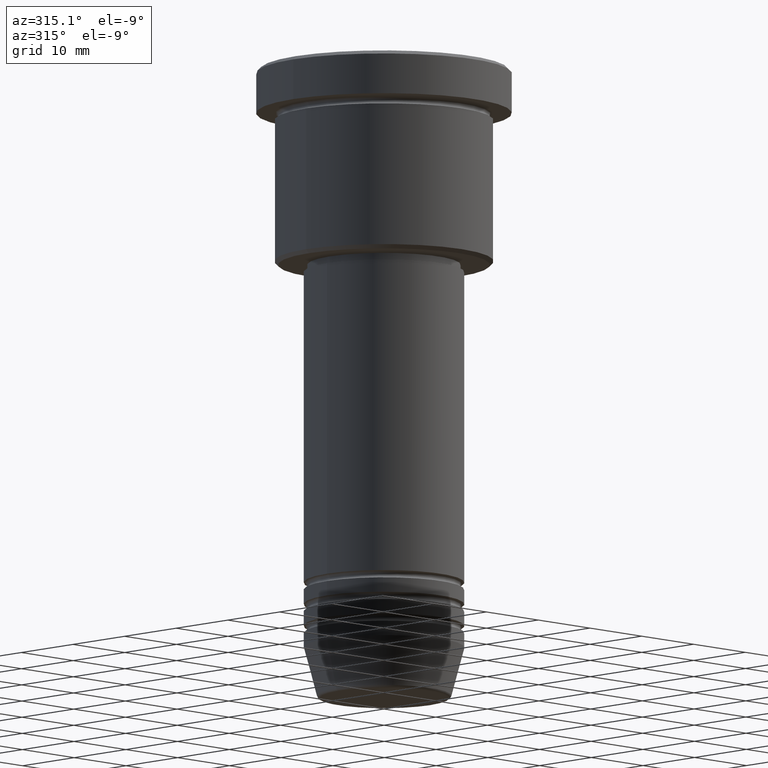
[diagram: clean part render]
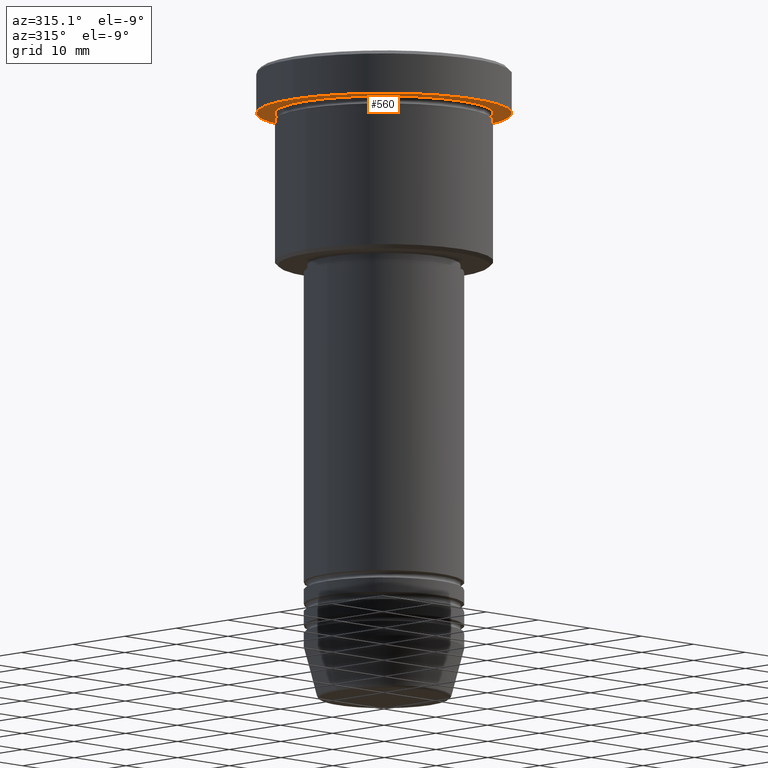
[diagram: same view with one face highlighted and labeled with its STEP entity id]
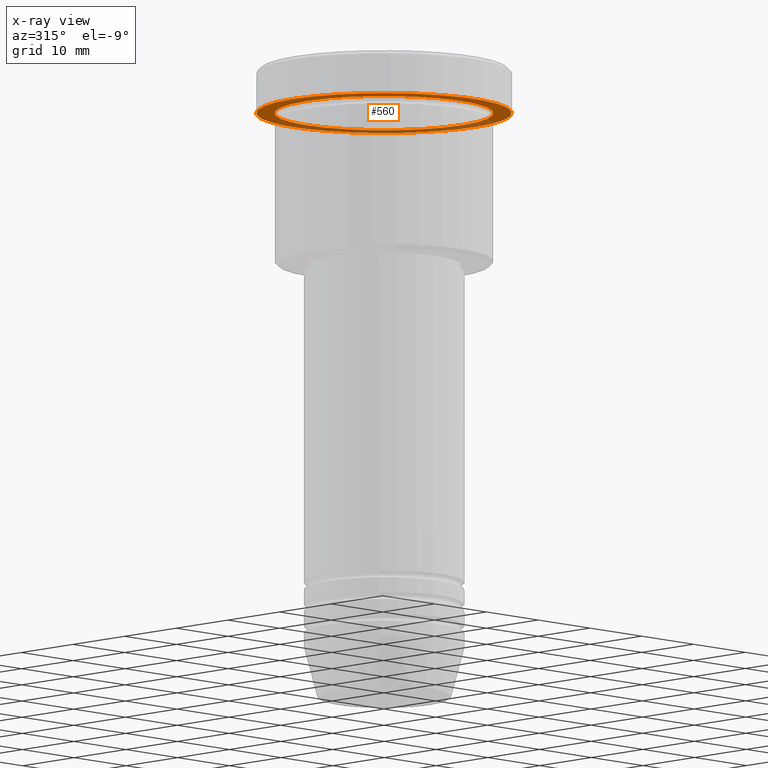
[diagram: x-ray of the same camera — body ghosted, the highlighted face saturated]
A machine part, auxiliary view. The second image highlights one B-rep face of the part: STEP entity #560.
The next image is the same camera in x-ray: the body ghosted, the highlighted face saturated — about 36% of this face is hidden behind the body in this view.
In plain terms, the highlighted planar face has unit normal (0, 0, -1).
Its self-contained STEP definition (entity closure, byte-faithful):
#3 = ORIENTED_EDGE ( 'NONE', *, *, #430, .T. ) ;
#22 = CARTESIAN_POINT ( 'NONE',  ( 0.000000000000000000, 0.000000000000000000, -5.999999999999995559 ) ) ;
#67 = AXIS2_PLACEMENT_3D ( 'NONE', #643, #1020, #107 ) ;
#76 = CARTESIAN_POINT ( 'NONE',  ( 17.50000000000000000, 0.000000000000000000, -5.999999999999995559 ) ) ;
#99 = FACE_OUTER_BOUND ( 'NONE', #885, .T. ) ;
#107 = DIRECTION ( 'NONE',  ( -1.000000000000000000, 0.000000000000000000, -0.000000000000000000 ) ) ;
#110 = DIRECTION ( 'NONE',  ( -0.000000000000000000, -0.000000000000000000, 1.000000000000000000 ) ) ;
#201 = FACE_BOUND ( 'NONE', #312, .T. ) ;
#202 = CARTESIAN_POINT ( 'NONE',  ( -17.50000000000000000, 2.143131898507868248E-15, -5.999999999999995559 ) ) ;
#239 = DIRECTION ( 'NONE',  ( 1.000000000000000000, 0.000000000000000000, 0.000000000000000000 ) ) ;
#256 = DIRECTION ( 'NONE',  ( -0.000000000000000000, -0.000000000000000000, 1.000000000000000000 ) ) ;
#299 = CARTESIAN_POINT ( 'NONE',  ( 15.00000000000000000, 1.836970198721029589E-15, -5.999999999999994671 ) ) ;
#312 = EDGE_LOOP ( 'NONE', ( #1037, #3 ) ) ;
#386 = ORIENTED_EDGE ( 'NONE', *, *, #663, .F. ) ;
#430 = EDGE_CURVE ( 'NONE', #489, #1066, #677, .T. ) ;
#445 = DIRECTION ( 'NONE',  ( -0.000000000000000000, -0.000000000000000000, 1.000000000000000000 ) ) ;
#489 = VERTEX_POINT ( 'NONE', #299 ) ;
#525 = EDGE_CURVE ( 'NONE', #847, #1050, #1152, .T. ) ;
#548 = AXIS2_PLACEMENT_3D ( 'NONE', #909, #256, #713 ) ;
#560 = ADVANCED_FACE ( 'NONE', ( #201, #99 ), #564, .T. ) ;
#564 = PLANE ( 'NONE',  #67 ) ;
#643 = CARTESIAN_POINT ( 'NONE',  ( 0.000000000000000000, 17.50000000000000000, -5.999999999999995559 ) ) ;
#663 = EDGE_CURVE ( 'NONE', #1050, #847, #911, .T. ) ;
#677 = CIRCLE ( 'NONE', #548, 15.00000000000000000 ) ;
#713 = DIRECTION ( 'NONE',  ( -1.000000000000000000, 0.000000000000000000, 0.000000000000000000 ) ) ;
#732 = DIRECTION ( 'NONE',  ( 1.000000000000000000, 0.000000000000000000, 0.000000000000000000 ) ) ;
#762 = AXIS2_PLACEMENT_3D ( 'NONE', #965, #867, #239 ) ;
#768 = CARTESIAN_POINT ( 'NONE',  ( -15.00000000000000000, 0.000000000000000000, -5.999999999999994671 ) ) ;
#847 = VERTEX_POINT ( 'NONE', #76 ) ;
#867 = DIRECTION ( 'NONE',  ( -0.000000000000000000, -0.000000000000000000, 1.000000000000000000 ) ) ;
#885 = EDGE_LOOP ( 'NONE', ( #1056, #386 ) ) ;
#909 = CARTESIAN_POINT ( 'NONE',  ( 0.000000000000000000, 0.000000000000000000, -5.999999999999995559 ) ) ;
#911 = CIRCLE ( 'NONE', #762, 17.50000000000000000 ) ;
#925 = EDGE_CURVE ( 'NONE', #1066, #489, #1000, .T. ) ;
#926 = AXIS2_PLACEMENT_3D ( 'NONE', #1011, #110, #732 ) ;
#946 = AXIS2_PLACEMENT_3D ( 'NONE', #22, #445, #1004 ) ;
#965 = CARTESIAN_POINT ( 'NONE',  ( 0.000000000000000000, 0.000000000000000000, -5.999999999999995559 ) ) ;
#1000 = CIRCLE ( 'NONE', #946, 15.00000000000000000 ) ;
#1004 = DIRECTION ( 'NONE',  ( -1.000000000000000000, 0.000000000000000000, 0.000000000000000000 ) ) ;
#1011 = CARTESIAN_POINT ( 'NONE',  ( 0.000000000000000000, 0.000000000000000000, -5.999999999999995559 ) ) ;
#1020 = DIRECTION ( 'NONE',  ( 0.000000000000000000, 0.000000000000000000, -1.000000000000000000 ) ) ;
#1037 = ORIENTED_EDGE ( 'NONE', *, *, #925, .T. ) ;
#1050 = VERTEX_POINT ( 'NONE', #202 ) ;
#1056 = ORIENTED_EDGE ( 'NONE', *, *, #525, .F. ) ;
#1066 = VERTEX_POINT ( 'NONE', #768 ) ;
#1152 = CIRCLE ( 'NONE', #926, 17.50000000000000000 ) ;